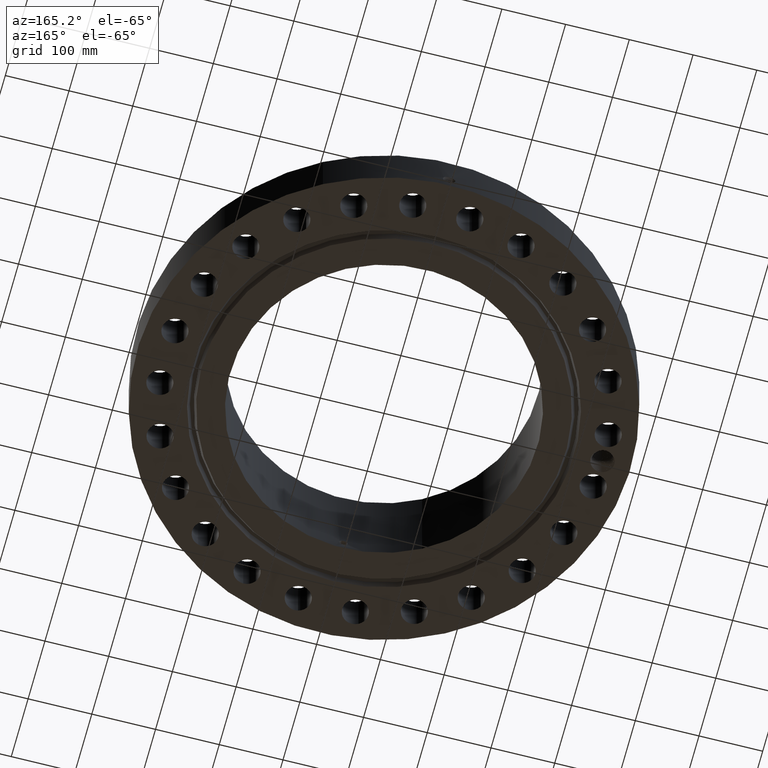
[diagram: clean part render]
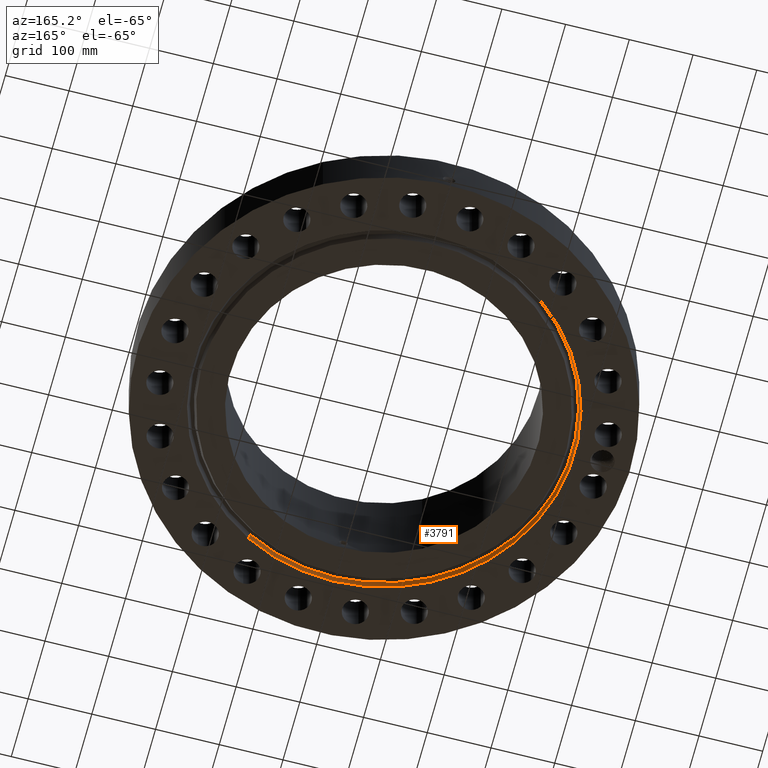
[diagram: same view with one face highlighted and labeled with its STEP entity id]
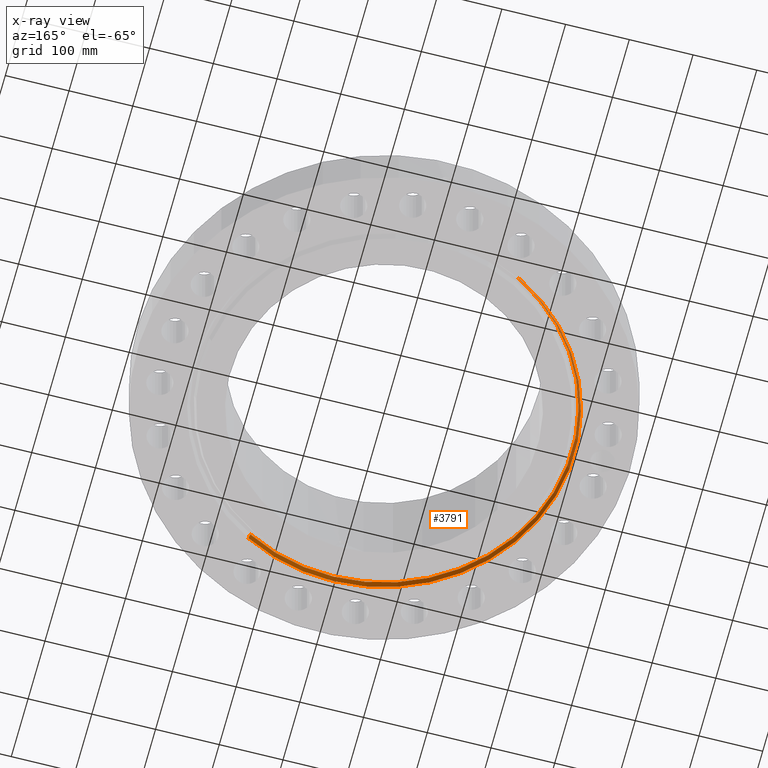
[diagram: x-ray of the same camera — body ghosted, the highlighted face saturated]
A machine part, auxiliary view. The second image highlights one B-rep face of the part: STEP entity #3791.
The next image is the same camera in x-ray: the body ghosted, the highlighted face saturated — about 0% of this face is hidden behind the body in this view.
In plain terms, the highlighted conical surface has half-angle 23 deg.
Its self-contained STEP definition (entity closure, byte-faithful):
#2635=AXIS2_PLACEMENT_3D('Circle Axis2P3D',#2633,#2634,$) ;
#3752=AXIS2_PLACEMENT_3D('Cone Axis2P3D',#3749,#3750,#3751) ;
#3782=AXIS2_PLACEMENT_3D('Circle Axis2P3D',#3780,#3781,$) ;
#2611=CARTESIAN_POINT('Vertex',(5.57180647081,-10.1991233326,0.338443867711)) ;
#2613=CARTESIAN_POINT('Vertex',(-5.57180647081,10.1991233326,0.338443867711)) ;
#2633=CARTESIAN_POINT('Axis2P3D Location',(0.,0.,0.338443867711)) ;
#3749=CARTESIAN_POINT('Axis2P3D Location',(0.,0.,0.338443867711)) ;
#3758=CARTESIAN_POINT('Vertex',(-5.64068117447,10.325197632,0.)) ;
#3760=CARTESIAN_POINT('Vertex',(5.64068117447,-10.325197632,-1.95818864186E-015)) ;
#3763=CARTESIAN_POINT('Line Origine',(5.60624382264,-10.2621604823,0.169221933855)) ;
#3768=CARTESIAN_POINT('Line Origine',(-5.60624382264,10.2621604823,0.169221933855)) ;
#3780=CARTESIAN_POINT('Axis2P3D Location',(0.,0.,0.)) ;
#2634=DIRECTION('Axis2P3D Direction',(0.,0.,0.0393700787402)) ;
#3750=DIRECTION('Axis2P3D Direction',(-0.,-0.,-0.0393700787402)) ;
#3751=DIRECTION('Axis2P3D XDirection',(0.0188750212049,-0.0345504945626,0.)) ;
#3764=DIRECTION('Vector Direction',(0.00737505833565,-0.0134999537303,-0.0362403485611)) ;
#3769=DIRECTION('Vector Direction',(-0.00737505833565,0.0134999537303,-0.0362403485611)) ;
#3781=DIRECTION('Axis2P3D Direction',(0.,0.,-0.0393700787402)) ;
#3765=VECTOR('Line Direction',#3764,0.0393700787402) ;
#3770=VECTOR('Line Direction',#3769,0.0393700787402) ;
#3786=ORIENTED_EDGE('',*,*,#3784,.T.) ;
#3787=ORIENTED_EDGE('',*,*,#3772,.T.) ;
#3788=ORIENTED_EDGE('',*,*,#2637,.T.) ;
#3789=ORIENTED_EDGE('',*,*,#3767,.F.) ;
#3791=ADVANCED_FACE('PartBody',(#3790),#3753,.F.) ;
#2636=CIRCLE('generated circle',#2635,11.6218391015) ;
#3783=CIRCLE('generated circle',#3782,11.7655) ;
#3753=CONICAL_SURFACE('Cone',#3752,11.6218391015,0.401425727959) ;
#2637=EDGE_CURVE('',#2614,#2612,#2636,.T.) ;
#3767=EDGE_CURVE('',#3761,#2612,#3766,.F.) ;
#3772=EDGE_CURVE('',#3759,#2614,#3771,.F.) ;
#3784=EDGE_CURVE('',#3761,#3759,#3783,.T.) ;
#3785=EDGE_LOOP('',(#3786,#3787,#3788,#3789)) ;
#3790=FACE_OUTER_BOUND('',#3785,.T.) ;
#3766=LINE('Line',#3763,#3765) ;
#3771=LINE('Line',#3768,#3770) ;
#2612=VERTEX_POINT('',#2611) ;
#2614=VERTEX_POINT('',#2613) ;
#3759=VERTEX_POINT('',#3758) ;
#3761=VERTEX_POINT('',#3760) ;